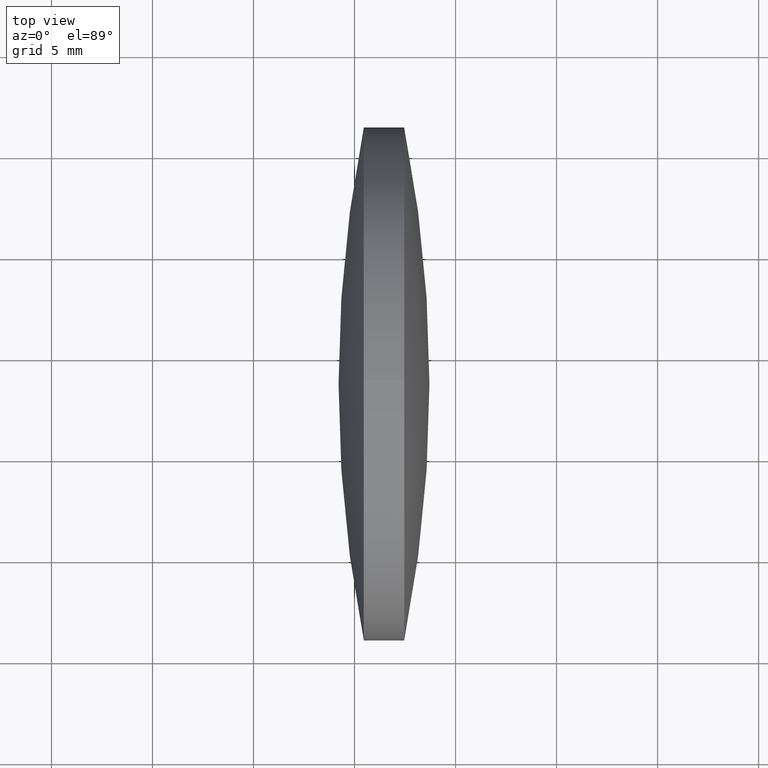
[diagram: clean part render]
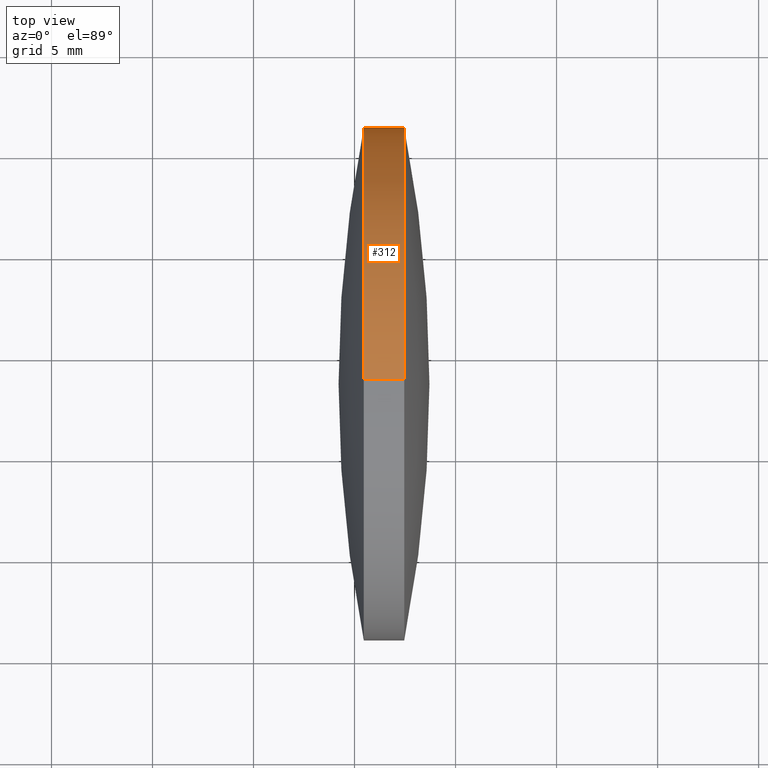
[diagram: same view with one face highlighted and labeled with its STEP entity id]
A machine part, top view. The second image highlights one B-rep face of the part: STEP entity #312.
In plain terms, the highlighted cylindrical surface (partial cylindrical patch) has radius 12.7 mm, axis along (-1, -0, -0).
Its self-contained STEP definition (entity closure, byte-faithful):
#7 = CIRCLE ( 'NONE', #246, 12.69999999999999600 ) ;
#12 = ORIENTED_EDGE ( 'NONE', *, *, #152, .T. ) ;
#15 = EDGE_CURVE ( 'NONE', #25, #255, #7, .T. ) ;
#19 = FACE_OUTER_BOUND ( 'NONE', #81, .T. ) ;
#23 = LINE ( 'NONE', #215, #144 ) ;
#25 = VERTEX_POINT ( 'NONE', #262 ) ;
#29 = DIRECTION ( 'NONE',  ( -1.000000000000000000, -0.0000000000000000000, -0.0000000000000000000 ) ) ;
#31 = AXIS2_PLACEMENT_3D ( 'NONE', #313, #345, #315 ) ;
#46 = ORIENTED_EDGE ( 'NONE', *, *, #67, .T. ) ;
#47 = CIRCLE ( 'NONE', #166, 12.69999999999999600 ) ;
#48 = DIRECTION ( 'NONE',  ( 0.0000000000000000000, 0.0000000000000000000, 1.000000000000000000 ) ) ;
#67 = EDGE_CURVE ( 'NONE', #227, #199, #23, .T. ) ;
#68 = DIRECTION ( 'NONE',  ( 0.0000000000000000000, 0.0000000000000000000, 1.000000000000000000 ) ) ;
#70 = DIRECTION ( 'NONE',  ( -1.000000000000000000, -0.0000000000000000000, -0.0000000000000000000 ) ) ;
#74 = LINE ( 'NONE', #245, #284 ) ;
#81 = EDGE_LOOP ( 'NONE', ( #12, #46, #258, #323, #222, #174 ) ) ;
#99 = EDGE_CURVE ( 'NONE', #265, #160, #203, .T. ) ;
#114 = DIRECTION ( 'NONE',  ( -1.000000000000000000, -0.0000000000000000000, -0.0000000000000000000 ) ) ;
#117 = DIRECTION ( 'NONE',  ( -1.000000000000000000, -0.0000000000000000000, -0.0000000000000000000 ) ) ;
#123 = CARTESIAN_POINT ( 'NONE',  ( 85.45852234609111500, 61.31611302318474100, 0.0000000000000000000 ) ) ;
#126 = CYLINDRICAL_SURFACE ( 'NONE', #256, 12.69999999999999600 ) ;
#127 = CARTESIAN_POINT ( 'NONE',  ( 85.45852234609111500, 48.61611302318478100, 0.0000000000000000000 ) ) ;
#131 = EDGE_CURVE ( 'NONE', #265, #25, #74, .T. ) ;
#144 = VECTOR ( 'NONE', #300, 1000.000000000000000 ) ;
#146 = CIRCLE ( 'NONE', #31, 12.69999999999999600 ) ;
#152 = EDGE_CURVE ( 'NONE', #160, #227, #47, .T. ) ;
#160 = VERTEX_POINT ( 'NONE', #279 ) ;
#166 = AXIS2_PLACEMENT_3D ( 'NONE', #223, #70, #68 ) ;
#174 = ORIENTED_EDGE ( 'NONE', *, *, #99, .T. ) ;
#181 = DIRECTION ( 'NONE',  ( 0.0000000000000000000, 0.0000000000000000000, 1.000000000000000000 ) ) ;
#195 = EDGE_CURVE ( 'NONE', #255, #199, #146, .T. ) ;
#198 = DIRECTION ( 'NONE',  ( 0.0000000000000000000, 0.0000000000000000000, 1.000000000000000000 ) ) ;
#199 = VERTEX_POINT ( 'NONE', #282 ) ;
#203 = CIRCLE ( 'NONE', #316, 12.69999999999999600 ) ;
#215 = CARTESIAN_POINT ( 'NONE',  ( 79.30540135083715800, 48.61611302318478100, -12.69999999999999600 ) ) ;
#222 = ORIENTED_EDGE ( 'NONE', *, *, #131, .F. ) ;
#223 = CARTESIAN_POINT ( 'NONE',  ( 87.45786520323396500, 48.61611302318478100, 0.0000000000000000000 ) ) ;
#225 = CARTESIAN_POINT ( 'NONE',  ( 87.45786520323396500, 48.61611302318478100, -12.69999999999999600 ) ) ;
#227 = VERTEX_POINT ( 'NONE', #225 ) ;
#233 = CARTESIAN_POINT ( 'NONE',  ( 87.45786520323396500, 48.61611302318478100, 12.69999999999999600 ) ) ;
#245 = CARTESIAN_POINT ( 'NONE',  ( 79.30540135083715800, 48.61611302318478100, 12.69999999999999600 ) ) ;
#246 = AXIS2_PLACEMENT_3D ( 'NONE', #127, #327, #181 ) ;
#255 = VERTEX_POINT ( 'NONE', #123 ) ;
#256 = AXIS2_PLACEMENT_3D ( 'NONE', #324, #29, #198 ) ;
#258 = ORIENTED_EDGE ( 'NONE', *, *, #195, .F. ) ;
#262 = CARTESIAN_POINT ( 'NONE',  ( 85.45852234609111500, 48.61611302318478100, 12.69999999999999600 ) ) ;
#265 = VERTEX_POINT ( 'NONE', #233 ) ;
#277 = CARTESIAN_POINT ( 'NONE',  ( 87.45786520323396500, 48.61611302318478100, 0.0000000000000000000 ) ) ;
#279 = CARTESIAN_POINT ( 'NONE',  ( 87.45786520323397900, 61.31611302318479100, 1.555301434917135300E-015 ) ) ;
#282 = CARTESIAN_POINT ( 'NONE',  ( 85.45852234609111500, 48.61611302318478100, -12.69999999999999600 ) ) ;
#284 = VECTOR ( 'NONE', #114, 1000.000000000000000 ) ;
#300 = DIRECTION ( 'NONE',  ( -1.000000000000000000, -0.0000000000000000000, -0.0000000000000000000 ) ) ;
#312 = ADVANCED_FACE ( 'NONE', ( #19 ), #126, .T. ) ;
#313 = CARTESIAN_POINT ( 'NONE',  ( 85.45852234609111500, 48.61611302318478100, 0.0000000000000000000 ) ) ;
#315 = DIRECTION ( 'NONE',  ( 0.0000000000000000000, 0.0000000000000000000, 1.000000000000000000 ) ) ;
#316 = AXIS2_PLACEMENT_3D ( 'NONE', #277, #117, #48 ) ;
#323 = ORIENTED_EDGE ( 'NONE', *, *, #15, .F. ) ;
#324 = CARTESIAN_POINT ( 'NONE',  ( 79.30540135083715800, 48.61611302318478100, 0.0000000000000000000 ) ) ;
#327 = DIRECTION ( 'NONE',  ( -1.000000000000000000, -0.0000000000000000000, -0.0000000000000000000 ) ) ;
#345 = DIRECTION ( 'NONE',  ( -1.000000000000000000, -0.0000000000000000000, -0.0000000000000000000 ) ) ;